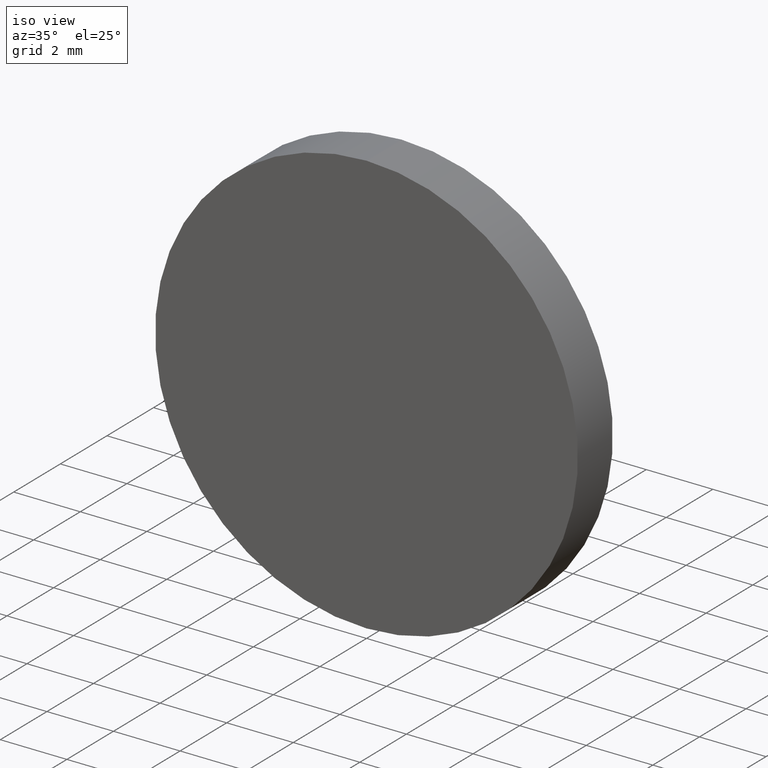
[diagram: clean part render]
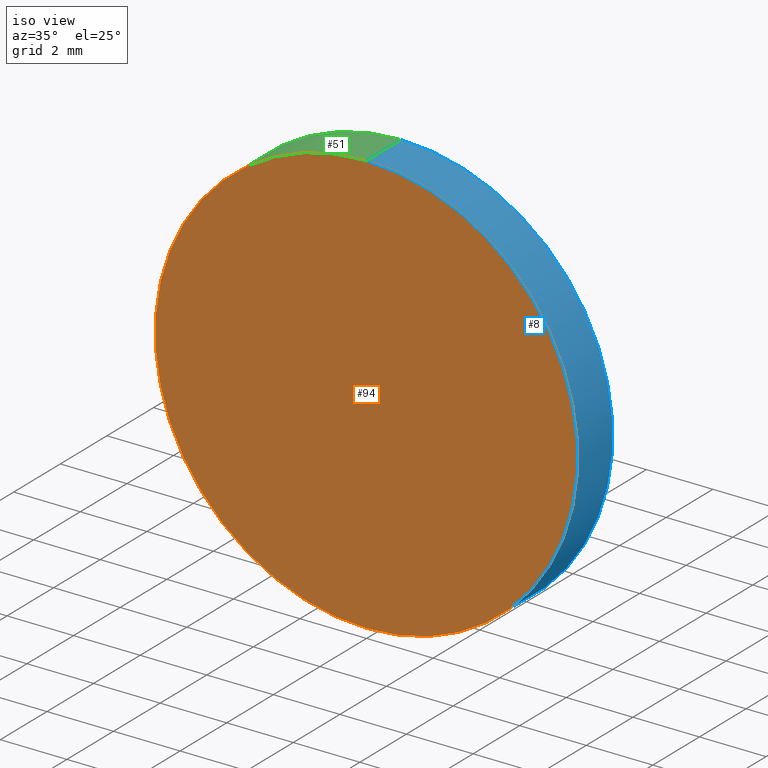
[diagram: same view with three faces highlighted in distinct colors, each labeled with its STEP entity id]
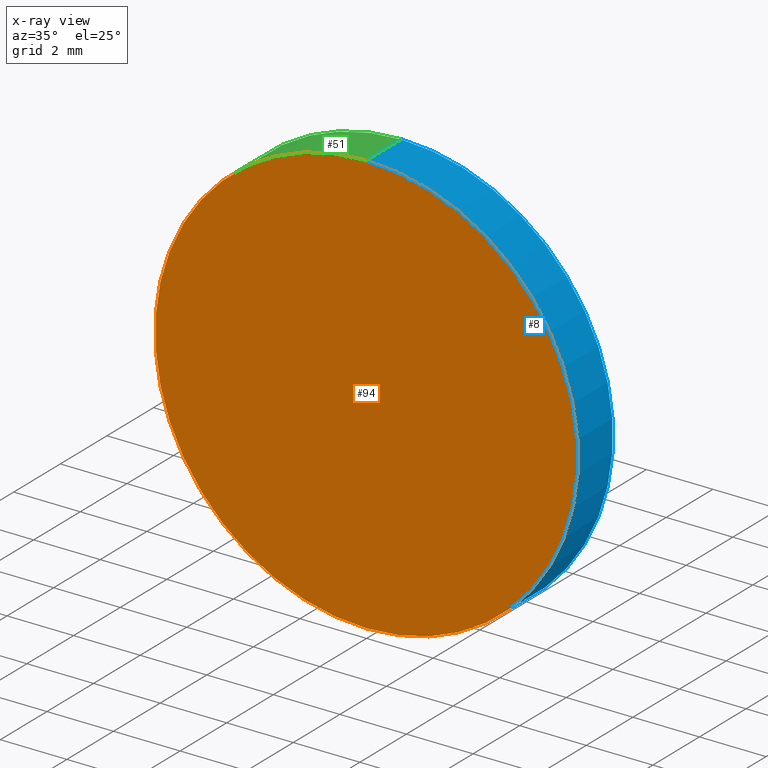
[diagram: x-ray of the same camera — body ghosted, the three highlighted faces saturated]
A machine part, iso view with three faces highlighted in distinct colors.
The next image is the same camera in x-ray (body ghosted, the three faces saturated) — at least one of them is partly hidden behind the body in this view.
Their STEP definitions:

[orange] entity #94 — the highlighted planar face has unit normal (0, 1, 0).
#1 = EDGE_LOOP ( 'NONE', ( #89, #12 ) ) ;
#3 = DIRECTION ( 'NONE',  ( 0.0000000000000000000, 1.000000000000000000, 0.0000000000000000000 ) ) ;
#10 = CARTESIAN_POINT ( 'NONE',  ( 0.0000000000000000000, 0.0000000000000000000, 0.0000000000000000000 ) ) ;
#12 = ORIENTED_EDGE ( 'NONE', *, *, #85, .F. ) ;
#21 = DIRECTION ( 'NONE',  ( 0.0000000000000000000, 1.000000000000000000, 0.0000000000000000000 ) ) ;
#23 = FACE_OUTER_BOUND ( 'NONE', #1, .T. ) ;
#43 = AXIS2_PLACEMENT_3D ( 'NONE', #87, #65, #112 ) ;
#56 = CIRCLE ( 'NONE', #43, 6.349999999999999600 ) ;
#61 = DIRECTION ( 'NONE',  ( 0.0000000000000000000, 0.0000000000000000000, 1.000000000000000000 ) ) ;
#63 = EDGE_CURVE ( 'NONE', #67, #125, #106, .T. ) ;
#65 = DIRECTION ( 'NONE',  ( 0.0000000000000000000, 1.000000000000000000, 0.0000000000000000000 ) ) ;
#67 = VERTEX_POINT ( 'NONE', #122 ) ;
#70 = AXIS2_PLACEMENT_3D ( 'NONE', #10, #21, #101 ) ;
#71 = CARTESIAN_POINT ( 'NONE',  ( 0.0000000000000000000, 0.0000000000000000000, 0.0000000000000000000 ) ) ;
#85 = EDGE_CURVE ( 'NONE', #125, #67, #56, .T. ) ;
#86 = PLANE ( 'NONE',  #70 ) ;
#87 = CARTESIAN_POINT ( 'NONE',  ( 0.0000000000000000000, 0.0000000000000000000, 0.0000000000000000000 ) ) ;
#89 = ORIENTED_EDGE ( 'NONE', *, *, #63, .F. ) ;
#94 = ADVANCED_FACE ( 'NONE', ( #23 ), #86, .F. ) ;
#101 = DIRECTION ( 'NONE',  ( 0.0000000000000000000, -0.0000000000000000000, 1.000000000000000000 ) ) ;
#106 = CIRCLE ( 'NONE', #139, 6.349999999999999600 ) ;
#112 = DIRECTION ( 'NONE',  ( 0.0000000000000000000, 0.0000000000000000000, 1.000000000000000000 ) ) ;
#118 = CARTESIAN_POINT ( 'NONE',  ( 7.776507174585692200E-016, 0.0000000000000000000, 6.349999999999999600 ) ) ;
#122 = CARTESIAN_POINT ( 'NONE',  ( 0.0000000000000000000, 0.0000000000000000000, -6.349999999999999600 ) ) ;
#125 = VERTEX_POINT ( 'NONE', #118 ) ;
#139 = AXIS2_PLACEMENT_3D ( 'NONE', #71, #3, #61 ) ;

[blue] entity #8 — the highlighted cylindrical surface (partial cylindrical patch) has radius 6.35 mm, axis along (-0, -1, -0).
#4 = LINE ( 'NONE', #59, #33 ) ;
#8 = ADVANCED_FACE ( 'NONE', ( #55 ), #96, .T. ) ;
#9 = VERTEX_POINT ( 'NONE', #53 ) ;
#14 = DIRECTION ( 'NONE',  ( 0.0000000000000000000, 1.000000000000000000, 0.0000000000000000000 ) ) ;
#26 = DIRECTION ( 'NONE',  ( -0.0000000000000000000, -1.000000000000000000, -0.0000000000000000000 ) ) ;
#27 = ORIENTED_EDGE ( 'NONE', *, *, #74, .T. ) ;
#33 = VECTOR ( 'NONE', #26, 1000.000000000000000 ) ;
#38 = ORIENTED_EDGE ( 'NONE', *, *, #111, .F. ) ;
#41 = VECTOR ( 'NONE', #83, 1000.000000000000000 ) ;
#43 = AXIS2_PLACEMENT_3D ( 'NONE', #87, #65, #112 ) ;
#44 = CARTESIAN_POINT ( 'NONE',  ( 0.0000000000000000000, 1.500000000000000000, -6.349999999999999600 ) ) ;
#46 = CARTESIAN_POINT ( 'NONE',  ( 0.0000000000000000000, 1.500000000000000000, 0.0000000000000000000 ) ) ;
#53 = CARTESIAN_POINT ( 'NONE',  ( 7.776507174585692200E-016, 1.500000000000000000, 6.349999999999999600 ) ) ;
#54 = DIRECTION ( 'NONE',  ( -0.0000000000000000000, -1.000000000000000000, -0.0000000000000000000 ) ) ;
#55 = FACE_OUTER_BOUND ( 'NONE', #138, .T. ) ;
#56 = CIRCLE ( 'NONE', #43, 6.349999999999999600 ) ;
#58 = AXIS2_PLACEMENT_3D ( 'NONE', #46, #54, #64 ) ;
#59 = CARTESIAN_POINT ( 'NONE',  ( 0.0000000000000000000, 1.500000000000000000, -6.349999999999999600 ) ) ;
#60 = CIRCLE ( 'NONE', #78, 6.349999999999999600 ) ;
#62 = CARTESIAN_POINT ( 'NONE',  ( 7.776507174585692200E-016, 1.500000000000000000, 6.349999999999999600 ) ) ;
#64 = DIRECTION ( 'NONE',  ( 0.0000000000000000000, 0.0000000000000000000, -1.000000000000000000 ) ) ;
#65 = DIRECTION ( 'NONE',  ( 0.0000000000000000000, 1.000000000000000000, 0.0000000000000000000 ) ) ;
#67 = VERTEX_POINT ( 'NONE', #122 ) ;
#68 = VERTEX_POINT ( 'NONE', #44 ) ;
#74 = EDGE_CURVE ( 'NONE', #9, #125, #109, .T. ) ;
#78 = AXIS2_PLACEMENT_3D ( 'NONE', #104, #14, #92 ) ;
#83 = DIRECTION ( 'NONE',  ( -0.0000000000000000000, -1.000000000000000000, -0.0000000000000000000 ) ) ;
#85 = EDGE_CURVE ( 'NONE', #125, #67, #56, .T. ) ;
#87 = CARTESIAN_POINT ( 'NONE',  ( 0.0000000000000000000, 0.0000000000000000000, 0.0000000000000000000 ) ) ;
#92 = DIRECTION ( 'NONE',  ( 0.0000000000000000000, 0.0000000000000000000, 1.000000000000000000 ) ) ;
#93 = ORIENTED_EDGE ( 'NONE', *, *, #95, .F. ) ;
#95 = EDGE_CURVE ( 'NONE', #68, #67, #4, .T. ) ;
#96 = CYLINDRICAL_SURFACE ( 'NONE', #58, 6.349999999999999600 ) ;
#104 = CARTESIAN_POINT ( 'NONE',  ( 0.0000000000000000000, 1.500000000000000000, 0.0000000000000000000 ) ) ;
#107 = ORIENTED_EDGE ( 'NONE', *, *, #85, .T. ) ;
#109 = LINE ( 'NONE', #62, #41 ) ;
#111 = EDGE_CURVE ( 'NONE', #9, #68, #60, .T. ) ;
#112 = DIRECTION ( 'NONE',  ( 0.0000000000000000000, 0.0000000000000000000, 1.000000000000000000 ) ) ;
#118 = CARTESIAN_POINT ( 'NONE',  ( 7.776507174585692200E-016, 0.0000000000000000000, 6.349999999999999600 ) ) ;
#122 = CARTESIAN_POINT ( 'NONE',  ( 0.0000000000000000000, 0.0000000000000000000, -6.349999999999999600 ) ) ;
#125 = VERTEX_POINT ( 'NONE', #118 ) ;
#138 = EDGE_LOOP ( 'NONE', ( #38, #27, #107, #93 ) ) ;

[green] entity #51 — the highlighted cylindrical surface (partial cylindrical patch) has radius 6.35 mm, axis along (-0, -1, -0).
#3 = DIRECTION ( 'NONE',  ( 0.0000000000000000000, 1.000000000000000000, 0.0000000000000000000 ) ) ;
#4 = LINE ( 'NONE', #59, #33 ) ;
#9 = VERTEX_POINT ( 'NONE', #53 ) ;
#16 = AXIS2_PLACEMENT_3D ( 'NONE', #34, #99, #19 ) ;
#17 = CYLINDRICAL_SURFACE ( 'NONE', #131, 6.349999999999999600 ) ;
#19 = DIRECTION ( 'NONE',  ( 0.0000000000000000000, 0.0000000000000000000, 1.000000000000000000 ) ) ;
#22 = DIRECTION ( 'NONE',  ( 0.0000000000000000000, 0.0000000000000000000, -1.000000000000000000 ) ) ;
#26 = DIRECTION ( 'NONE',  ( -0.0000000000000000000, -1.000000000000000000, -0.0000000000000000000 ) ) ;
#32 = ORIENTED_EDGE ( 'NONE', *, *, #63, .T. ) ;
#33 = VECTOR ( 'NONE', #26, 1000.000000000000000 ) ;
#34 = CARTESIAN_POINT ( 'NONE',  ( 0.0000000000000000000, 1.500000000000000000, 0.0000000000000000000 ) ) ;
#41 = VECTOR ( 'NONE', #83, 1000.000000000000000 ) ;
#42 = ORIENTED_EDGE ( 'NONE', *, *, #52, .F. ) ;
#44 = CARTESIAN_POINT ( 'NONE',  ( 0.0000000000000000000, 1.500000000000000000, -6.349999999999999600 ) ) ;
#51 = ADVANCED_FACE ( 'NONE', ( #82 ), #17, .T. ) ;
#52 = EDGE_CURVE ( 'NONE', #68, #9, #132, .T. ) ;
#53 = CARTESIAN_POINT ( 'NONE',  ( 7.776507174585692200E-016, 1.500000000000000000, 6.349999999999999600 ) ) ;
#59 = CARTESIAN_POINT ( 'NONE',  ( 0.0000000000000000000, 1.500000000000000000, -6.349999999999999600 ) ) ;
#61 = DIRECTION ( 'NONE',  ( 0.0000000000000000000, 0.0000000000000000000, 1.000000000000000000 ) ) ;
#62 = CARTESIAN_POINT ( 'NONE',  ( 7.776507174585692200E-016, 1.500000000000000000, 6.349999999999999600 ) ) ;
#63 = EDGE_CURVE ( 'NONE', #67, #125, #106, .T. ) ;
#66 = ORIENTED_EDGE ( 'NONE', *, *, #95, .T. ) ;
#67 = VERTEX_POINT ( 'NONE', #122 ) ;
#68 = VERTEX_POINT ( 'NONE', #44 ) ;
#71 = CARTESIAN_POINT ( 'NONE',  ( 0.0000000000000000000, 0.0000000000000000000, 0.0000000000000000000 ) ) ;
#72 = DIRECTION ( 'NONE',  ( -0.0000000000000000000, -1.000000000000000000, -0.0000000000000000000 ) ) ;
#73 = CARTESIAN_POINT ( 'NONE',  ( 0.0000000000000000000, 1.500000000000000000, 0.0000000000000000000 ) ) ;
#74 = EDGE_CURVE ( 'NONE', #9, #125, #109, .T. ) ;
#82 = FACE_OUTER_BOUND ( 'NONE', #102, .T. ) ;
#83 = DIRECTION ( 'NONE',  ( -0.0000000000000000000, -1.000000000000000000, -0.0000000000000000000 ) ) ;
#95 = EDGE_CURVE ( 'NONE', #68, #67, #4, .T. ) ;
#99 = DIRECTION ( 'NONE',  ( 0.0000000000000000000, 1.000000000000000000, 0.0000000000000000000 ) ) ;
#102 = EDGE_LOOP ( 'NONE', ( #129, #42, #66, #32 ) ) ;
#106 = CIRCLE ( 'NONE', #139, 6.349999999999999600 ) ;
#109 = LINE ( 'NONE', #62, #41 ) ;
#118 = CARTESIAN_POINT ( 'NONE',  ( 7.776507174585692200E-016, 0.0000000000000000000, 6.349999999999999600 ) ) ;
#122 = CARTESIAN_POINT ( 'NONE',  ( 0.0000000000000000000, 0.0000000000000000000, -6.349999999999999600 ) ) ;
#125 = VERTEX_POINT ( 'NONE', #118 ) ;
#129 = ORIENTED_EDGE ( 'NONE', *, *, #74, .F. ) ;
#131 = AXIS2_PLACEMENT_3D ( 'NONE', #73, #72, #22 ) ;
#132 = CIRCLE ( 'NONE', #16, 6.349999999999999600 ) ;
#139 = AXIS2_PLACEMENT_3D ( 'NONE', #71, #3, #61 ) ;